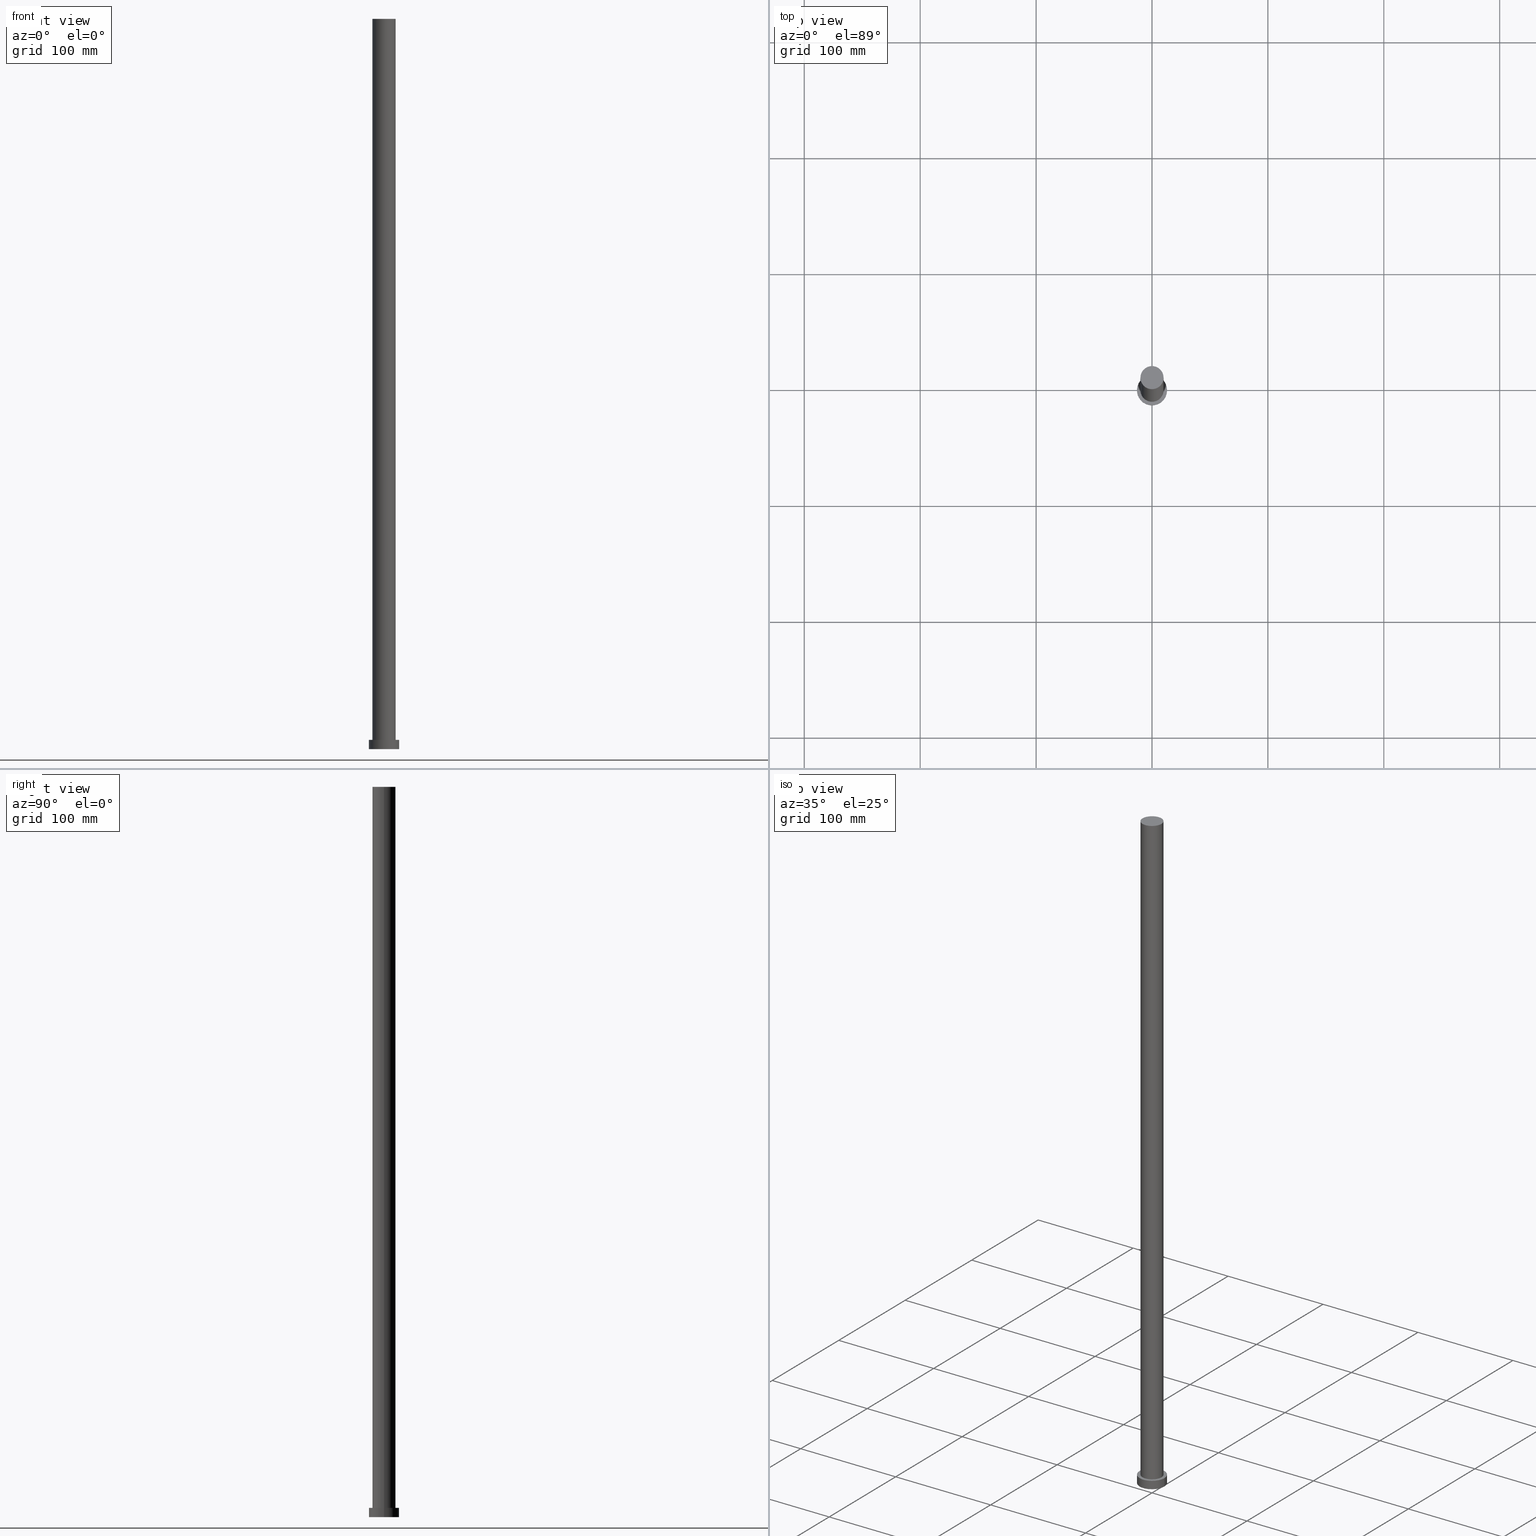
[diagram: canonical four-view strip — front | top / right | iso, engineering-drawing reading convention]
A machine part, canonical four-view strip (front | top / right | iso — engineering-drawing reading convention). The complete STEP part file that produces these views, byte-faithful:
ISO-10303-21;
HEADER;
FILE_DESCRIPTION (( 'STEP AP203' ),
    '1' );
FILE_NAME ('ace9.STEP',
    '2023-02-12T10:31:49',
    ( '' ),
    ( '' ),
    'SwSTEP 2.0',
    'SolidWorks 2019',
    '' );
FILE_SCHEMA (( 'CONFIG_CONTROL_DESIGN' ));
ENDSEC;

DATA;
#1 = CARTESIAN_POINT ( 'NONE',  ( 0.000000000000000000, 0.000000000000000000, 8.000000000000000000 ) ) ;
#2 = CARTESIAN_POINT ( 'NONE',  ( 0.000000000000000000, 0.000000000000000000, 0.000000000000000000 ) ) ;
#3 = DIRECTION ( 'NONE',  ( 0.000000000000000000, 0.000000000000000000, 1.000000000000000000 ) ) ;
#4 = ORIENTED_EDGE ( 'NONE', *, *, #194, .F. ) ;
#5 = CALENDAR_DATE ( 2023, 12, 2 ) ;
#6 = CC_DESIGN_DATE_AND_TIME_ASSIGNMENT ( #13, #154, ( #123 ) ) ;
#7 = ORIENTED_EDGE ( 'NONE', *, *, #187, .T. ) ;
#8 = DATE_AND_TIME ( #5, #45 ) ;
#9 = ORIENTED_EDGE ( 'NONE', *, *, #11, .T. ) ;
#10 = PERSON_AND_ORGANIZATION_ROLE ( 'creator' ) ;
#11 = EDGE_CURVE ( 'NONE', #195, #169, #97, .T. ) ;
#12 = ORIENTED_EDGE ( 'NONE', *, *, #125, .F. ) ;
#13 = DATE_AND_TIME ( #79, #232 ) ;
#14 = DIRECTION ( 'NONE',  ( -1.000000000000000000, 0.000000000000000000, 0.000000000000000000 ) ) ;
#15 = DIRECTION ( 'NONE',  ( 0.000000000000000000, 0.000000000000000000, 1.000000000000000000 ) ) ;
#16 = FACE_OUTER_BOUND ( 'NONE', #27, .T. ) ;
#17 = ORIENTED_EDGE ( 'NONE', *, *, #144, .F. ) ;
#18 = AXIS2_PLACEMENT_3D ( 'NONE', #2, #3, #212 ) ;
#19 = DIRECTION ( 'NONE',  ( -1.000000000000000000, 0.000000000000000000, 0.000000000000000000 ) ) ;
#20 = DIRECTION ( 'NONE',  ( 1.000000000000000000, 0.000000000000000000, 0.000000000000000000 ) ) ;
#21 = LINE ( 'NONE', #246, #22 ) ;
#22 = VECTOR ( 'NONE', #243, 1000.000000000000000 ) ;
#23 = EDGE_CURVE ( 'NONE', #180, #166, #111, .T. ) ;
#24 = AXIS2_PLACEMENT_3D ( 'NONE', #140, #70, #224 ) ;
#25 = MECHANICAL_CONTEXT ( 'NONE', #164, 'mechanical' ) ;
#26 = AXIS2_PLACEMENT_3D ( 'NONE', #89, #35, #203 ) ;
#27 = EDGE_LOOP ( 'NONE', ( #252, #33 ) ) ;
#28 = ADVANCED_FACE ( 'NONE', ( #16 ), #83, .T. ) ;
#29 =( NAMED_UNIT ( * ) PLANE_ANGLE_UNIT ( ) SI_UNIT ( $, .RADIAN. ) );
#30 = CLOSED_SHELL ( 'NONE', ( #78, #114, #225, #172, #255, #71, #28 ) ) ;
#31 = DATE_TIME_ROLE ( 'creation_date' ) ;
#32 = FACE_OUTER_BOUND ( 'NONE', #98, .T. ) ;
#33 = ORIENTED_EDGE ( 'NONE', *, *, #235, .T. ) ;
#34 = APPLICATION_PROTOCOL_DEFINITION ( 'international standard', 'config_control_design', 1994, #185 ) ;
#35 = DIRECTION ( 'NONE',  ( -0.000000000000000000, -0.000000000000000000, -1.000000000000000000 ) ) ;
#36 = VERTEX_POINT ( 'NONE', #200 ) ;
#37 = PERSON_AND_ORGANIZATION ( #92, #196 ) ;
#38 = CARTESIAN_POINT ( 'NONE',  ( 10.00000000000000000, 1.224646799147353256E-15, 630.0000000000000000 ) ) ;
#39 = ORIENTED_EDGE ( 'NONE', *, *, #170, .F. ) ;
#40 = DIRECTION ( 'NONE',  ( 0.000000000000000000, 0.000000000000000000, 1.000000000000000000 ) ) ;
#41 = FACE_OUTER_BOUND ( 'NONE', #227, .T. ) ;
#42 = CC_DESIGN_DATE_AND_TIME_ASSIGNMENT ( #8, #31, ( #183 ) ) ;
#43 = VECTOR ( 'NONE', #132, 1000.000000000000000 ) ;
#44 = PERSON_AND_ORGANIZATION ( #92, #196 ) ;
#45 = LOCAL_TIME ( 11, 31, 49.00000000000000000, #127 ) ;
#46 = ORIENTED_EDGE ( 'NONE', *, *, #201, .T. ) ;
#47 = DIRECTION ( 'NONE',  ( 0.000000000000000000, 0.000000000000000000, 1.000000000000000000 ) ) ;
#48 = APPROVAL_DATE_TIME ( #116, #248 ) ;
#49 = CYLINDRICAL_SURFACE ( 'NONE', #26, 13.00000000000000178 ) ;
#50 = DIRECTION ( 'NONE',  ( -0.000000000000000000, -0.000000000000000000, -1.000000000000000000 ) ) ;
#51 = PERSON_AND_ORGANIZATION ( #92, #196 ) ;
#52 = CARTESIAN_POINT ( 'NONE',  ( 13.00000000000000178, 1.592040838891559293E-15, 8.000000000000000000 ) ) ;
#53 = APPLICATION_PROTOCOL_DEFINITION ( 'international standard', 'config_control_design', 1994, #164 ) ;
#54 = DIRECTION ( 'NONE',  ( 0.000000000000000000, 0.000000000000000000, 1.000000000000000000 ) ) ;
#55 = VECTOR ( 'NONE', #107, 1000.000000000000000 ) ;
#56 = LINE ( 'NONE', #38, #240 ) ;
#57 = APPROVAL ( #178, 'NEUR�EN�' ) ;
#58 = CIRCLE ( 'NONE', #177, 13.00000000000000178 ) ;
#59 = DIRECTION ( 'NONE',  ( 1.000000000000000000, 0.000000000000000000, -0.000000000000000000 ) ) ;
#60 = PRODUCT ( 'ace9', 'ace9', '', ( #25 ) ) ;
#61 = APPROVAL_DATE_TIME ( #197, #115 ) ;
#62 = VERTEX_POINT ( 'NONE', #108 ) ;
#63 = AXIS2_PLACEMENT_3D ( 'NONE', #73, #122, #217 ) ;
#64 = DATE_AND_TIME ( #174, #76 ) ;
#65 = CALENDAR_DATE ( 2023, 12, 2 ) ;
#66 = AXIS2_PLACEMENT_3D ( 'NONE', #128, #50, #184 ) ;
#67 = ORIENTED_EDGE ( 'NONE', *, *, #201, .F. ) ;
#68 = PERSON_AND_ORGANIZATION ( #92, #196 ) ;
#69 = FACE_OUTER_BOUND ( 'NONE', #247, .T. ) ;
#70 = DIRECTION ( 'NONE',  ( 0.000000000000000000, 0.000000000000000000, 1.000000000000000000 ) ) ;
#71 = ADVANCED_FACE ( 'NONE', ( #231 ), #219, .T. ) ;
#72 = CARTESIAN_POINT ( 'NONE',  ( 10.00000000000000000, 1.224646799147353256E-15, 8.000000000000000000 ) ) ;
#73 = CARTESIAN_POINT ( 'NONE',  ( 0.000000000000000000, 0.000000000000000000, 630.0000000000000000 ) ) ;
#74 = DIRECTION ( 'NONE',  ( 1.000000000000000000, 0.000000000000000000, -0.000000000000000000 ) ) ;
#75 = AXIS2_PLACEMENT_3D ( 'NONE', #226, #88, #106 ) ;
#76 = LOCAL_TIME ( 11, 31, 49.00000000000000000, #176 ) ;
#77 = DIRECTION ( 'NONE',  ( 0.000000000000000000, 0.000000000000000000, 1.000000000000000000 ) ) ;
#78 = ADVANCED_FACE ( 'NONE', ( #41 ), #245, .T. ) ;
#79 = CALENDAR_DATE ( 2023, 12, 2 ) ;
#80 =( GEOMETRIC_REPRESENTATION_CONTEXT ( 3 ) GLOBAL_UNCERTAINTY_ASSIGNED_CONTEXT ( ( #133 ) ) GLOBAL_UNIT_ASSIGNED_CONTEXT ( ( #156, #29, #102 ) ) REPRESENTATION_CONTEXT ( 'NONE', 'WORKASPACE' ) );
#81 = EDGE_LOOP ( 'NONE', ( #17, #218, #46, #241 ) ) ;
#82 = APPROVAL_ROLE ( '' ) ;
#83 = PLANE ( 'NONE',  #254 ) ;
#84 = DIRECTION ( 'NONE',  ( 0.000000000000000000, 0.000000000000000000, 1.000000000000000000 ) ) ;
#85 = EDGE_LOOP ( 'NONE', ( #198, #175 ) ) ;
#86 = CARTESIAN_POINT ( 'NONE',  ( 0.000000000000000000, 0.000000000000000000, 630.0000000000000000 ) ) ;
#87 = LOCAL_TIME ( 11, 31, 49.00000000000000000, #244 ) ;
#88 = DIRECTION ( 'NONE',  ( 0.000000000000000000, 0.000000000000000000, 1.000000000000000000 ) ) ;
#89 = CARTESIAN_POINT ( 'NONE',  ( 0.000000000000000000, 0.000000000000000000, 8.000000000000000000 ) ) ;
#90 = ORIENTED_EDGE ( 'NONE', *, *, #152, .F. ) ;
#91 = PLANE ( 'NONE',  #230 ) ;
#92 = PERSON ( 'NEUR�EN�', 'NEUR�EN�', 'NEUR�EN�', ('NEUR�EN�'), ('NEUR�EN�'), ('NEUR�EN�') ) ;
#93 = CC_DESIGN_PERSON_AND_ORGANIZATION_ASSIGNMENT ( #37, #104, ( #113 ) ) ;
#94 = CC_DESIGN_APPROVAL ( #57, ( #183 ) ) ;
#95 = CC_DESIGN_PERSON_AND_ORGANIZATION_ASSIGNMENT ( #96, #150, ( #60 ) ) ;
#96 = PERSON_AND_ORGANIZATION ( #92, #196 ) ;
#97 = CIRCLE ( 'NONE', #134, 10.00000000000000000 ) ;
#98 = EDGE_LOOP ( 'NONE', ( #138, #67 ) ) ;
#99 = ORIENTED_EDGE ( 'NONE', *, *, #194, .T. ) ;
#100 = ORIENTED_EDGE ( 'NONE', *, *, #125, .T. ) ;
#101 = VERTEX_POINT ( 'NONE', #253 ) ;
#102 =( NAMED_UNIT ( * ) SI_UNIT ( $, .STERADIAN. ) SOLID_ANGLE_UNIT ( ) );
#103 = ORIENTED_EDGE ( 'NONE', *, *, #211, .F. ) ;
#104 = PERSON_AND_ORGANIZATION_ROLE ( 'design_supplier' ) ;
#105 = CARTESIAN_POINT ( 'NONE',  ( 0.000000000000000000, 0.000000000000000000, 0.000000000000000000 ) ) ;
#106 = DIRECTION ( 'NONE',  ( 1.000000000000000000, 0.000000000000000000, 0.000000000000000000 ) ) ;
#107 = DIRECTION ( 'NONE',  ( -0.000000000000000000, -0.000000000000000000, -1.000000000000000000 ) ) ;
#108 = CARTESIAN_POINT ( 'NONE',  ( 13.00000000000000178, 1.592040838891559293E-15, 8.000000000000000000 ) ) ;
#109 = DIRECTION ( 'NONE',  ( -0.000000000000000000, -0.000000000000000000, -1.000000000000000000 ) ) ;
#110 = FACE_OUTER_BOUND ( 'NONE', #81, .T. ) ;
#111 = CIRCLE ( 'NONE', #210, 13.00000000000000178 ) ;
#112 = PRODUCT_DEFINITION_SHAPE ( 'NONE', 'NONE',  #183 ) ;
#113 = PRODUCT_DEFINITION_FORMATION_WITH_SPECIFIED_SOURCE ( 'LIBOVOLN�', '', #60, .NOT_KNOWN. ) ;
#114 = ADVANCED_FACE ( 'NONE', ( #110 ), #49, .T. ) ;
#115 = APPROVAL ( #239, 'NEUR�EN�' ) ;
#116 = DATE_AND_TIME ( #213, #188 ) ;
#117 = ORIENTED_EDGE ( 'NONE', *, *, #179, .F. ) ;
#118 = SHAPE_DEFINITION_REPRESENTATION ( #112, #182 ) ;
#119 = CARTESIAN_POINT ( 'NONE',  ( 0.000000000000000000, 0.000000000000000000, 8.000000000000000000 ) ) ;
#120 = COORDINATED_UNIVERSAL_TIME_OFFSET ( 1, 0, .AHEAD. ) ;
#121 = FACE_BOUND ( 'NONE', #153, .T. ) ;
#122 = DIRECTION ( 'NONE',  ( 0.000000000000000000, 0.000000000000000000, 1.000000000000000000 ) ) ;
#123 = SECURITY_CLASSIFICATION ( '', '', #173 ) ;
#124 = DIRECTION ( 'NONE',  ( -0.000000000000000000, -0.000000000000000000, -1.000000000000000000 ) ) ;
#125 = EDGE_CURVE ( 'NONE', #238, #195, #56, .T. ) ;
#126 = ORIENTED_EDGE ( 'NONE', *, *, #235, .F. ) ;
#127 = COORDINATED_UNIVERSAL_TIME_OFFSET ( 1, 0, .AHEAD. ) ;
#128 = CARTESIAN_POINT ( 'NONE',  ( 0.000000000000000000, 0.000000000000000000, 630.0000000000000000 ) ) ;
#129 = CIRCLE ( 'NONE', #24, 13.00000000000000178 ) ;
#130 = CARTESIAN_POINT ( 'NONE',  ( 0.000000000000000000, 0.000000000000000000, 630.0000000000000000 ) ) ;
#131 = AXIS2_PLACEMENT_3D ( 'NONE', #229, #15, #163 ) ;
#132 = DIRECTION ( 'NONE',  ( -0.000000000000000000, -0.000000000000000000, -1.000000000000000000 ) ) ;
#133 = UNCERTAINTY_MEASURE_WITH_UNIT (LENGTH_MEASURE( 1.000000000000000082E-05 ), #156, 'distance_accuracy_value', 'NONE');
#134 = AXIS2_PLACEMENT_3D ( 'NONE', #214, #155, #139 ) ;
#135 = AXIS2_PLACEMENT_3D ( 'NONE', #204, #109, #19 ) ;
#136 = PERSON_AND_ORGANIZATION ( #92, #196 ) ;
#137 = CC_DESIGN_PERSON_AND_ORGANIZATION_ASSIGNMENT ( #193, #199, ( #113 ) ) ;
#138 = ORIENTED_EDGE ( 'NONE', *, *, #23, .F. ) ;
#139 = DIRECTION ( 'NONE',  ( 1.000000000000000000, 0.000000000000000000, 0.000000000000000000 ) ) ;
#140 = CARTESIAN_POINT ( 'NONE',  ( 0.000000000000000000, 0.000000000000000000, 8.000000000000000000 ) ) ;
#141 = CARTESIAN_POINT ( 'NONE',  ( 13.00000000000000178, 1.592040838891559293E-15, 0.000000000000000000 ) ) ;
#142 = PLANE ( 'NONE',  #190 ) ;
#143 = AXIS2_PLACEMENT_3D ( 'NONE', #130, #40, #20 ) ;
#144 = EDGE_CURVE ( 'NONE', #62, #101, #129, .T. ) ;
#145 = DESIGN_CONTEXT ( 'detailed design', #185, 'design' ) ;
#146 = PRODUCT_RELATED_PRODUCT_CATEGORY ( 'detail', '', ( #60 ) ) ;
#147 = APPROVAL_PERSON_ORGANIZATION ( #68, #57, #242 ) ;
#148 = CC_DESIGN_PERSON_AND_ORGANIZATION_ASSIGNMENT ( #44, #151, ( #123 ) ) ;
#149 = CC_DESIGN_APPROVAL ( #115, ( #123 ) ) ;
#150 = PERSON_AND_ORGANIZATION_ROLE ( 'design_owner' ) ;
#151 = PERSON_AND_ORGANIZATION_ROLE ( 'classification_officer' ) ;
#152 = EDGE_CURVE ( 'NONE', #62, #166, #186, .T. ) ;
#153 = EDGE_LOOP ( 'NONE', ( #4, #157 ) ) ;
#154 = DATE_TIME_ROLE ( 'classification_date' ) ;
#155 = DIRECTION ( 'NONE',  ( 0.000000000000000000, 0.000000000000000000, 1.000000000000000000 ) ) ;
#156 =( LENGTH_UNIT ( ) NAMED_UNIT ( * ) SI_UNIT ( .MILLI., .METRE. ) );
#157 = ORIENTED_EDGE ( 'NONE', *, *, #11, .F. ) ;
#158 = APPROVAL_STATUS ( 'not_yet_approved' ) ;
#159 = CARTESIAN_POINT ( 'NONE',  ( 0.000000000000000000, 0.000000000000000000, 0.000000000000000000 ) ) ;
#160 = COORDINATED_UNIVERSAL_TIME_OFFSET ( 1, 0, .AHEAD. ) ;
#161 = DIRECTION ( 'NONE',  ( 1.000000000000000000, 0.000000000000000000, 0.000000000000000000 ) ) ;
#162 = DIRECTION ( 'NONE',  ( 1.000000000000000000, 0.000000000000000000, -0.000000000000000000 ) ) ;
#163 = DIRECTION ( 'NONE',  ( 1.000000000000000000, 0.000000000000000000, 0.000000000000000000 ) ) ;
#164 = APPLICATION_CONTEXT ( 'configuration controlled 3d designs of mechanical parts and assemblies' ) ;
#165 = APPROVAL_PERSON_ORGANIZATION ( #220, #115, #82 ) ;
#166 = VERTEX_POINT ( 'NONE', #141 ) ;
#167 = DIRECTION ( 'NONE',  ( 1.000000000000000000, 0.000000000000000000, 0.000000000000000000 ) ) ;
#168 = CIRCLE ( 'NONE', #63, 10.00000000000000000 ) ;
#169 = VERTEX_POINT ( 'NONE', #228 ) ;
#170 = EDGE_CURVE ( 'NONE', #36, #238, #189, .T. ) ;
#171 = CIRCLE ( 'NONE', #131, 13.00000000000000178 ) ;
#172 = ADVANCED_FACE ( 'NONE', ( #121, #208 ), #91, .T. ) ;
#173 = SECURITY_CLASSIFICATION_LEVEL ( 'unclassified' ) ;
#174 = CALENDAR_DATE ( 2023, 12, 2 ) ;
#175 = ORIENTED_EDGE ( 'NONE', *, *, #144, .T. ) ;
#176 = COORDINATED_UNIVERSAL_TIME_OFFSET ( 1, 0, .AHEAD. ) ;
#177 = AXIS2_PLACEMENT_3D ( 'NONE', #119, #54, #167 ) ;
#178 = APPROVAL_STATUS ( 'not_yet_approved' ) ;
#179 = EDGE_CURVE ( 'NONE', #36, #169, #236, .T. ) ;
#180 = VERTEX_POINT ( 'NONE', #207 ) ;
#181 = DIRECTION ( 'NONE',  ( 0.000000000000000000, 0.000000000000000000, 1.000000000000000000 ) ) ;
#182 = ADVANCED_BREP_SHAPE_REPRESENTATION ( 'ace9', ( #234, #18 ), #80 ) ;
#183 = PRODUCT_DEFINITION ( 'NEZN�M�', '', #113, #145 ) ;
#184 = DIRECTION ( 'NONE',  ( -1.000000000000000000, 0.000000000000000000, 0.000000000000000000 ) ) ;
#185 = APPLICATION_CONTEXT ( 'configuration controlled 3d designs of mechanical parts and assemblies' ) ;
#186 = LINE ( 'NONE', #52, #55 ) ;
#187 = EDGE_CURVE ( 'NONE', #101, #180, #21, .T. ) ;
#188 = LOCAL_TIME ( 11, 31, 49.00000000000000000, #160 ) ;
#189 = CIRCLE ( 'NONE', #143, 10.00000000000000000 ) ;
#190 = AXIS2_PLACEMENT_3D ( 'NONE', #105, #47, #162 ) ;
#191 = CC_DESIGN_PERSON_AND_ORGANIZATION_ASSIGNMENT ( #51, #10, ( #183 ) ) ;
#192 = CARTESIAN_POINT ( 'NONE',  ( 10.00000000000000000, 1.224646799147353256E-15, 630.0000000000000000 ) ) ;
#193 = PERSON_AND_ORGANIZATION ( #92, #196 ) ;
#194 = EDGE_CURVE ( 'NONE', #169, #195, #237, .T. ) ;
#195 = VERTEX_POINT ( 'NONE', #72 ) ;
#196 = ORGANIZATION ( 'NEUR�EN�', 'NEUR�EN�', '' ) ;
#197 = DATE_AND_TIME ( #65, #87 ) ;
#198 = ORIENTED_EDGE ( 'NONE', *, *, #211, .T. ) ;
#199 = PERSON_AND_ORGANIZATION_ROLE ( 'creator' ) ;
#200 = CARTESIAN_POINT ( 'NONE',  ( -10.00000000000000000, 0.000000000000000000, 630.0000000000000000 ) ) ;
#201 = EDGE_CURVE ( 'NONE', #166, #180, #171, .T. ) ;
#202 = ORIENTED_EDGE ( 'NONE', *, *, #179, .T. ) ;
#203 = DIRECTION ( 'NONE',  ( -1.000000000000000000, 0.000000000000000000, 0.000000000000000000 ) ) ;
#204 = CARTESIAN_POINT ( 'NONE',  ( 0.000000000000000000, 0.000000000000000000, 8.000000000000000000 ) ) ;
#205 = CC_DESIGN_APPROVAL ( #248, ( #113 ) ) ;
#206 = CARTESIAN_POINT ( 'NONE',  ( 0.000000000000000000, 0.000000000000000000, 630.0000000000000000 ) ) ;
#207 = CARTESIAN_POINT ( 'NONE',  ( -13.00000000000000178, 0.000000000000000000, 0.000000000000000000 ) ) ;
#208 = FACE_OUTER_BOUND ( 'NONE', #85, .T. ) ;
#209 = CARTESIAN_POINT ( 'NONE',  ( -10.00000000000000000, 0.000000000000000000, 630.0000000000000000 ) ) ;
#210 = AXIS2_PLACEMENT_3D ( 'NONE', #159, #181, #161 ) ;
#211 = EDGE_CURVE ( 'NONE', #101, #62, #58, .T. ) ;
#212 = DIRECTION ( 'NONE',  ( 1.000000000000000000, 0.000000000000000000, 0.000000000000000000 ) ) ;
#213 = CALENDAR_DATE ( 2023, 12, 2 ) ;
#214 = CARTESIAN_POINT ( 'NONE',  ( 0.000000000000000000, 0.000000000000000000, 8.000000000000000000 ) ) ;
#215 = CC_DESIGN_SECURITY_CLASSIFICATION ( #123, ( #113 ) ) ;
#216 = EDGE_LOOP ( 'NONE', ( #12, #39, #202, #99 ) ) ;
#217 = DIRECTION ( 'NONE',  ( 1.000000000000000000, 0.000000000000000000, 0.000000000000000000 ) ) ;
#218 = ORIENTED_EDGE ( 'NONE', *, *, #152, .T. ) ;
#219 = CYLINDRICAL_SURFACE ( 'NONE', #66, 10.00000000000000000 ) ;
#220 = PERSON_AND_ORGANIZATION ( #92, #196 ) ;
#221 = ORIENTED_EDGE ( 'NONE', *, *, #23, .T. ) ;
#222 = APPROVAL_PERSON_ORGANIZATION ( #136, #248, #249 ) ;
#223 = APPROVAL_DATE_TIME ( #64, #57 ) ;
#224 = DIRECTION ( 'NONE',  ( 1.000000000000000000, 0.000000000000000000, 0.000000000000000000 ) ) ;
#225 = ADVANCED_FACE ( 'NONE', ( #69 ), #251, .T. ) ;
#226 = CARTESIAN_POINT ( 'NONE',  ( 0.000000000000000000, 0.000000000000000000, 8.000000000000000000 ) ) ;
#227 = EDGE_LOOP ( 'NONE', ( #126, #100, #9, #117 ) ) ;
#228 = CARTESIAN_POINT ( 'NONE',  ( -10.00000000000000000, 0.000000000000000000, 8.000000000000000000 ) ) ;
#229 = CARTESIAN_POINT ( 'NONE',  ( 0.000000000000000000, 0.000000000000000000, 0.000000000000000000 ) ) ;
#230 = AXIS2_PLACEMENT_3D ( 'NONE', #1, #77, #59 ) ;
#231 = FACE_OUTER_BOUND ( 'NONE', #216, .T. ) ;
#232 = LOCAL_TIME ( 11, 31, 49.00000000000000000, #120 ) ;
#233 = AXIS2_PLACEMENT_3D ( 'NONE', #206, #124, #14 ) ;
#234 = MANIFOLD_SOLID_BREP ( 'P�idat vysunut�m3', #30 ) ;
#235 = EDGE_CURVE ( 'NONE', #238, #36, #168, .T. ) ;
#236 = LINE ( 'NONE', #209, #43 ) ;
#237 = CIRCLE ( 'NONE', #75, 10.00000000000000000 ) ;
#238 = VERTEX_POINT ( 'NONE', #192 ) ;
#239 = APPROVAL_STATUS ( 'not_yet_approved' ) ;
#240 = VECTOR ( 'NONE', #250, 1000.000000000000000 ) ;
#241 = ORIENTED_EDGE ( 'NONE', *, *, #187, .F. ) ;
#242 = APPROVAL_ROLE ( '' ) ;
#243 = DIRECTION ( 'NONE',  ( -0.000000000000000000, -0.000000000000000000, -1.000000000000000000 ) ) ;
#244 = COORDINATED_UNIVERSAL_TIME_OFFSET ( 1, 0, .AHEAD. ) ;
#245 = CYLINDRICAL_SURFACE ( 'NONE', #233, 10.00000000000000000 ) ;
#246 = CARTESIAN_POINT ( 'NONE',  ( -13.00000000000000178, 0.000000000000000000, 8.000000000000000000 ) ) ;
#247 = EDGE_LOOP ( 'NONE', ( #90, #103, #7, #221 ) ) ;
#248 = APPROVAL ( #158, 'NEUR�EN�' ) ;
#249 = APPROVAL_ROLE ( '' ) ;
#250 = DIRECTION ( 'NONE',  ( -0.000000000000000000, -0.000000000000000000, -1.000000000000000000 ) ) ;
#251 = CYLINDRICAL_SURFACE ( 'NONE', #135, 13.00000000000000178 ) ;
#252 = ORIENTED_EDGE ( 'NONE', *, *, #170, .T. ) ;
#253 = CARTESIAN_POINT ( 'NONE',  ( -13.00000000000000178, 0.000000000000000000, 8.000000000000000000 ) ) ;
#254 = AXIS2_PLACEMENT_3D ( 'NONE', #86, #84, #74 ) ;
#255 = ADVANCED_FACE ( 'NONE', ( #32 ), #142, .F. ) ;
ENDSEC;
END-ISO-10303-21;
